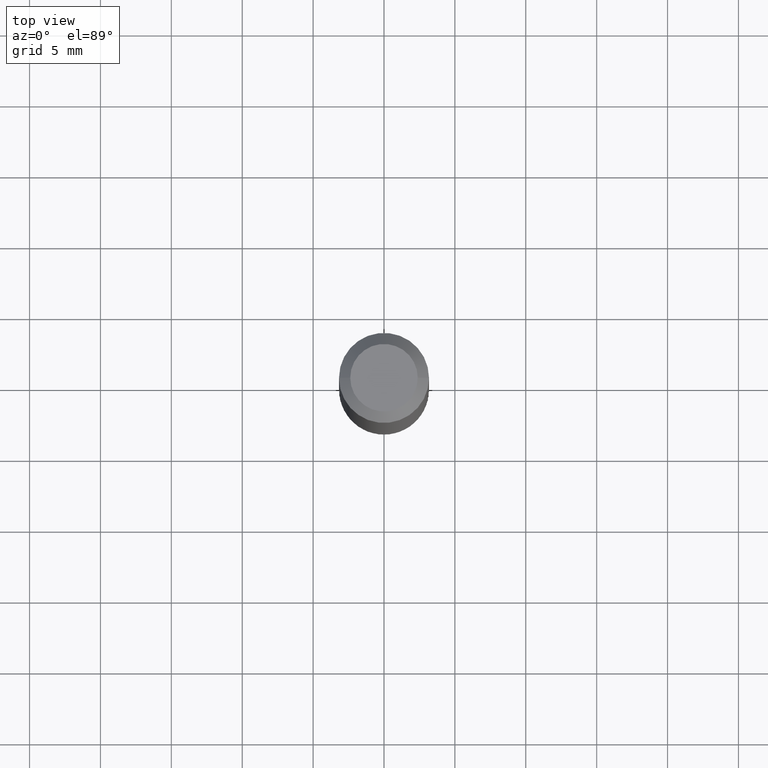
[diagram: clean part render]
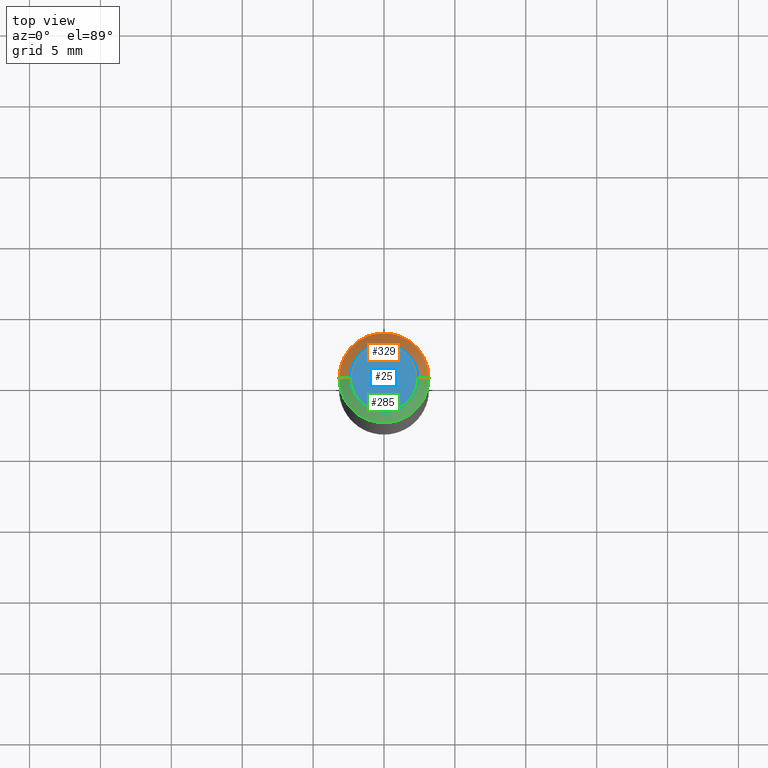
[diagram: same view with three faces highlighted in distinct colors, each labeled with its STEP entity id]
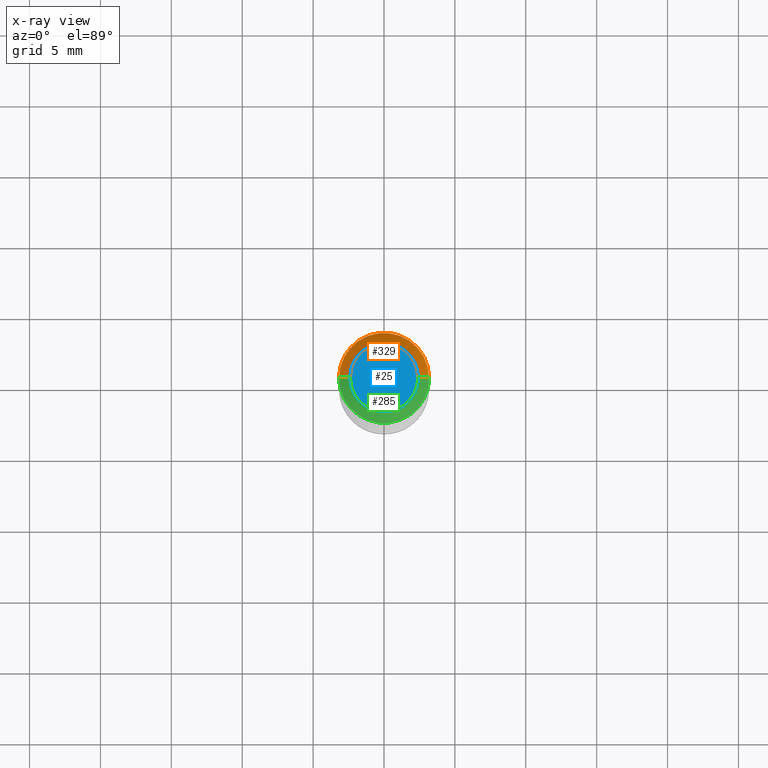
[diagram: x-ray of the same camera — body ghosted, the three highlighted faces saturated]
A machine part, top view with three faces highlighted in distinct colors.
The next image is the same camera in x-ray (body ghosted, the three faces saturated) — at least one of them is partly hidden behind the body in this view.
Their STEP definitions:

[orange] entity #329 — the highlighted conical surface has half-angle 45 deg.
#19 = EDGE_CURVE ( 'NONE', #244, #246, #93, .T. ) ;
#26 = DIRECTION ( 'NONE',  ( -0.7071067811865452413, 2.468850131082233000E-15, -0.7071067811865497932 ) ) ;
#27 = CARTESIAN_POINT ( 'NONE',  ( 7.642090019328606165E-31, -1.091087918388490760E-16, -0.03125000000000022204 ) ) ;
#28 = DIRECTION ( 'NONE',  ( 0.7071067811865452413, -7.319954787623248157E-15, -0.7071067811865497932 ) ) ;
#46 = DIRECTION ( 'NONE',  ( -2.445468806185136597E-29, 3.491481338843145583E-15, 1.000000000000000000 ) ) ;
#68 = CIRCLE ( 'NONE', #389, 0.1250000000000000278 ) ;
#80 = CARTESIAN_POINT ( 'NONE',  ( -0.09374999999999998612, 7.092071469525108711E-16, 3.827021247330707859E-18 ) ) ;
#90 = EDGE_CURVE ( 'NONE', #266, #246, #68, .T. ) ;
#92 = VECTOR ( 'NONE', #28, 39.37007874015748143 ) ;
#93 = LINE ( 'NONE', #315, #396 ) ;
#96 = ORIENTED_EDGE ( 'NONE', *, *, #248, .F. ) ;
#114 = ORIENTED_EDGE ( 'NONE', *, *, #19, .F. ) ;
#116 = CARTESIAN_POINT ( 'NONE',  ( 7.642090019328606165E-31, -1.091087918388490760E-16, -0.03125000000000022204 ) ) ;
#122 = DIRECTION ( 'NONE',  ( -2.445468806185136597E-29, 3.491481338843145583E-15, 1.000000000000000000 ) ) ;
#147 = EDGE_LOOP ( 'NONE', ( #96, #221, #374, #114 ) ) ;
#153 = CARTESIAN_POINT ( 'NONE',  ( -0.1250000000000000278, -2.482410377785575114E-15, -0.03125000000000022204 ) ) ;
#154 = CIRCLE ( 'NONE', #384, 0.09374999999999998612 ) ;
#158 = DIRECTION ( 'NONE',  ( -1.000000000000000000, 6.982962677686265922E-15, 0.000000000000000000 ) ) ;
#181 = CARTESIAN_POINT ( 'NONE',  ( 0.1250000000000000278, -9.819791265496326367E-16, -0.03125000000000022204 ) ) ;
#220 = DIRECTION ( 'NONE',  ( 2.445468806185136597E-29, -3.491481338843145583E-15, -1.000000000000000000 ) ) ;
#221 = ORIENTED_EDGE ( 'NONE', *, *, #255, .T. ) ;
#227 = CARTESIAN_POINT ( 'NONE',  ( 0.09374999999999998612, -8.049213644256858150E-16, 3.827021247340580176E-18 ) ) ;
#244 = VERTEX_POINT ( 'NONE', #80 ) ;
#246 = VERTEX_POINT ( 'NONE', #153 ) ;
#248 = EDGE_CURVE ( 'NONE', #278, #244, #154, .T. ) ;
#255 = EDGE_CURVE ( 'NONE', #278, #266, #289, .T. ) ;
#266 = VERTEX_POINT ( 'NONE', #181 ) ;
#278 = VERTEX_POINT ( 'NONE', #227 ) ;
#284 = CARTESIAN_POINT ( 'NONE',  ( 0.1250000000000000278, -9.666710415602907432E-16, -0.03125000000000022204 ) ) ;
#289 = LINE ( 'NONE', #284, #92 ) ;
#310 = CARTESIAN_POINT ( 'NONE',  ( -9.358861080966640236E-47, 1.336197326842803670E-32, 3.827021247335477232E-18 ) ) ;
#315 = CARTESIAN_POINT ( 'NONE',  ( -0.1250000000000000278, 7.637615428719344354E-16, -0.03125000000000022204 ) ) ;
#329 = ADVANCED_FACE ( 'NONE', ( #370 ), #368, .T. ) ;
#333 = DIRECTION ( 'NONE',  ( 1.000000000000000000, -6.982962677686265922E-15, 0.000000000000000000 ) ) ;
#344 = DIRECTION ( 'NONE',  ( 1.000000000000000000, -6.982962677686266711E-15, 4.875989565238656407E-29 ) ) ;
#368 = CONICAL_SURFACE ( 'NONE', #369, 0.1250000000000000278, 0.7853981633974450594 ) ;
#369 = AXIS2_PLACEMENT_3D ( 'NONE', #27, #220, #158 ) ;
#370 = FACE_OUTER_BOUND ( 'NONE', #147, .T. ) ;
#374 = ORIENTED_EDGE ( 'NONE', *, *, #90, .T. ) ;
#384 = AXIS2_PLACEMENT_3D ( 'NONE', #310, #122, #344 ) ;
#389 = AXIS2_PLACEMENT_3D ( 'NONE', #116, #46, #333 ) ;
#396 = VECTOR ( 'NONE', #26, 39.37007874015748143 ) ;

[blue] entity #25 — the highlighted planar face has unit normal (0, -0, -1).
#2 = DIRECTION ( 'NONE',  ( -1.000000000000000000, 6.982962677686265922E-15, -4.876176775795935793E-29 ) ) ;
#10 = AXIS2_PLACEMENT_3D ( 'NONE', #352, #349, #2 ) ;
#25 = ADVANCED_FACE ( 'NONE', ( #291 ), #191, .F. ) ;
#48 = AXIS2_PLACEMENT_3D ( 'NONE', #58, #262, #135 ) ;
#58 = CARTESIAN_POINT ( 'NONE',  ( -9.358861080966640236E-47, 1.336197326842803670E-32, 3.827021247335477232E-18 ) ) ;
#62 = CIRCLE ( 'NONE', #48, 0.09374999999999998612 ) ;
#66 = EDGE_CURVE ( 'NONE', #244, #278, #62, .T. ) ;
#67 = EDGE_LOOP ( 'NONE', ( #402, #376 ) ) ;
#80 = CARTESIAN_POINT ( 'NONE',  ( -0.09374999999999998612, 7.092071469525108711E-16, 3.827021247330707859E-18 ) ) ;
#122 = DIRECTION ( 'NONE',  ( -2.445468806185136597E-29, 3.491481338843145583E-15, 1.000000000000000000 ) ) ;
#135 = DIRECTION ( 'NONE',  ( 1.000000000000000000, -6.982962677686266711E-15, 4.875989565238656407E-29 ) ) ;
#154 = CIRCLE ( 'NONE', #384, 0.09374999999999998612 ) ;
#191 = PLANE ( 'NONE',  #10 ) ;
#227 = CARTESIAN_POINT ( 'NONE',  ( 0.09374999999999998612, -8.049213644256858150E-16, 3.827021247340580176E-18 ) ) ;
#244 = VERTEX_POINT ( 'NONE', #80 ) ;
#248 = EDGE_CURVE ( 'NONE', #278, #244, #154, .T. ) ;
#262 = DIRECTION ( 'NONE',  ( -2.445468806185136597E-29, 3.491481338843145583E-15, 1.000000000000000000 ) ) ;
#278 = VERTEX_POINT ( 'NONE', #227 ) ;
#291 = FACE_OUTER_BOUND ( 'NONE', #67, .T. ) ;
#310 = CARTESIAN_POINT ( 'NONE',  ( -9.358861080966640236E-47, 1.336197326842803670E-32, 3.827021247335477232E-18 ) ) ;
#344 = DIRECTION ( 'NONE',  ( 1.000000000000000000, -6.982962677686266711E-15, 4.875989565238656407E-29 ) ) ;
#349 = DIRECTION ( 'NONE',  ( 2.438088387897960049E-29, -3.491481338843145188E-15, -1.000000000000000000 ) ) ;
#352 = CARTESIAN_POINT ( 'NONE',  ( -4.679430540483320118E-47, 6.680986634214018350E-33, 1.913510623667738616E-18 ) ) ;
#376 = ORIENTED_EDGE ( 'NONE', *, *, #248, .T. ) ;
#384 = AXIS2_PLACEMENT_3D ( 'NONE', #310, #122, #344 ) ;
#402 = ORIENTED_EDGE ( 'NONE', *, *, #66, .T. ) ;

[green] entity #285 — the highlighted conical surface has half-angle 45 deg.
#19 = EDGE_CURVE ( 'NONE', #244, #246, #93, .T. ) ;
#26 = DIRECTION ( 'NONE',  ( -0.7071067811865452413, 2.468850131082233000E-15, -0.7071067811865497932 ) ) ;
#28 = DIRECTION ( 'NONE',  ( 0.7071067811865452413, -7.319954787623248157E-15, -0.7071067811865497932 ) ) ;
#38 = ORIENTED_EDGE ( 'NONE', *, *, #180, .T. ) ;
#48 = AXIS2_PLACEMENT_3D ( 'NONE', #58, #262, #135 ) ;
#58 = CARTESIAN_POINT ( 'NONE',  ( -9.358861080966640236E-47, 1.336197326842803670E-32, 3.827021247335477232E-18 ) ) ;
#62 = CIRCLE ( 'NONE', #48, 0.09374999999999998612 ) ;
#66 = EDGE_CURVE ( 'NONE', #244, #278, #62, .T. ) ;
#77 = CARTESIAN_POINT ( 'NONE',  ( 7.642090019328606165E-31, -1.091087918388490760E-16, -0.03125000000000022204 ) ) ;
#80 = CARTESIAN_POINT ( 'NONE',  ( -0.09374999999999998612, 7.092071469525108711E-16, 3.827021247330707859E-18 ) ) ;
#92 = VECTOR ( 'NONE', #28, 39.37007874015748143 ) ;
#93 = LINE ( 'NONE', #315, #396 ) ;
#118 = ORIENTED_EDGE ( 'NONE', *, *, #66, .F. ) ;
#135 = DIRECTION ( 'NONE',  ( 1.000000000000000000, -6.982962677686266711E-15, 4.875989565238656407E-29 ) ) ;
#140 = CIRCLE ( 'NONE', #275, 0.1250000000000000278 ) ;
#153 = CARTESIAN_POINT ( 'NONE',  ( -0.1250000000000000278, -2.482410377785575114E-15, -0.03125000000000022204 ) ) ;
#160 = CARTESIAN_POINT ( 'NONE',  ( 7.642090019328606165E-31, -1.091087918388490760E-16, -0.03125000000000022204 ) ) ;
#170 = AXIS2_PLACEMENT_3D ( 'NONE', #160, #279, #407 ) ;
#172 = DIRECTION ( 'NONE',  ( 1.000000000000000000, -6.982962677686265922E-15, 0.000000000000000000 ) ) ;
#176 = DIRECTION ( 'NONE',  ( -2.445468806185136597E-29, 3.491481338843145583E-15, 1.000000000000000000 ) ) ;
#180 = EDGE_CURVE ( 'NONE', #246, #266, #140, .T. ) ;
#181 = CARTESIAN_POINT ( 'NONE',  ( 0.1250000000000000278, -9.819791265496326367E-16, -0.03125000000000022204 ) ) ;
#185 = ORIENTED_EDGE ( 'NONE', *, *, #255, .F. ) ;
#188 = ORIENTED_EDGE ( 'NONE', *, *, #19, .T. ) ;
#217 = FACE_OUTER_BOUND ( 'NONE', #328, .T. ) ;
#227 = CARTESIAN_POINT ( 'NONE',  ( 0.09374999999999998612, -8.049213644256858150E-16, 3.827021247340580176E-18 ) ) ;
#244 = VERTEX_POINT ( 'NONE', #80 ) ;
#246 = VERTEX_POINT ( 'NONE', #153 ) ;
#255 = EDGE_CURVE ( 'NONE', #278, #266, #289, .T. ) ;
#262 = DIRECTION ( 'NONE',  ( -2.445468806185136597E-29, 3.491481338843145583E-15, 1.000000000000000000 ) ) ;
#266 = VERTEX_POINT ( 'NONE', #181 ) ;
#275 = AXIS2_PLACEMENT_3D ( 'NONE', #77, #176, #172 ) ;
#278 = VERTEX_POINT ( 'NONE', #227 ) ;
#279 = DIRECTION ( 'NONE',  ( 2.445468806185136597E-29, -3.491481338843145583E-15, -1.000000000000000000 ) ) ;
#284 = CARTESIAN_POINT ( 'NONE',  ( 0.1250000000000000278, -9.666710415602907432E-16, -0.03125000000000022204 ) ) ;
#285 = ADVANCED_FACE ( 'NONE', ( #217 ), #377, .T. ) ;
#289 = LINE ( 'NONE', #284, #92 ) ;
#315 = CARTESIAN_POINT ( 'NONE',  ( -0.1250000000000000278, 7.637615428719344354E-16, -0.03125000000000022204 ) ) ;
#328 = EDGE_LOOP ( 'NONE', ( #185, #118, #188, #38 ) ) ;
#377 = CONICAL_SURFACE ( 'NONE', #170, 0.1250000000000000278, 0.7853981633974450594 ) ;
#396 = VECTOR ( 'NONE', #26, 39.37007874015748143 ) ;
#407 = DIRECTION ( 'NONE',  ( -1.000000000000000000, 6.982962677686265922E-15, 0.000000000000000000 ) ) ;